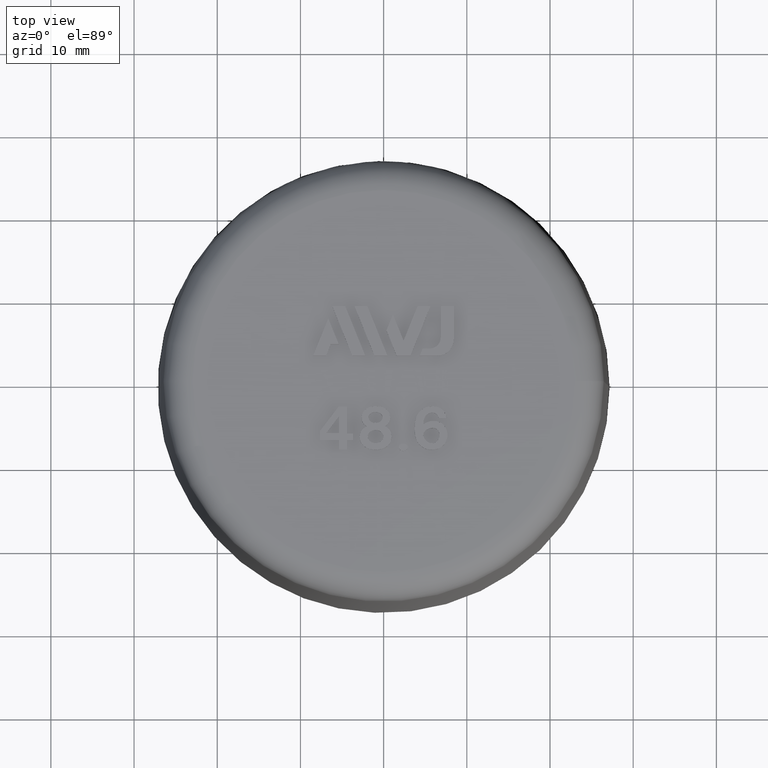
[diagram: clean part render]
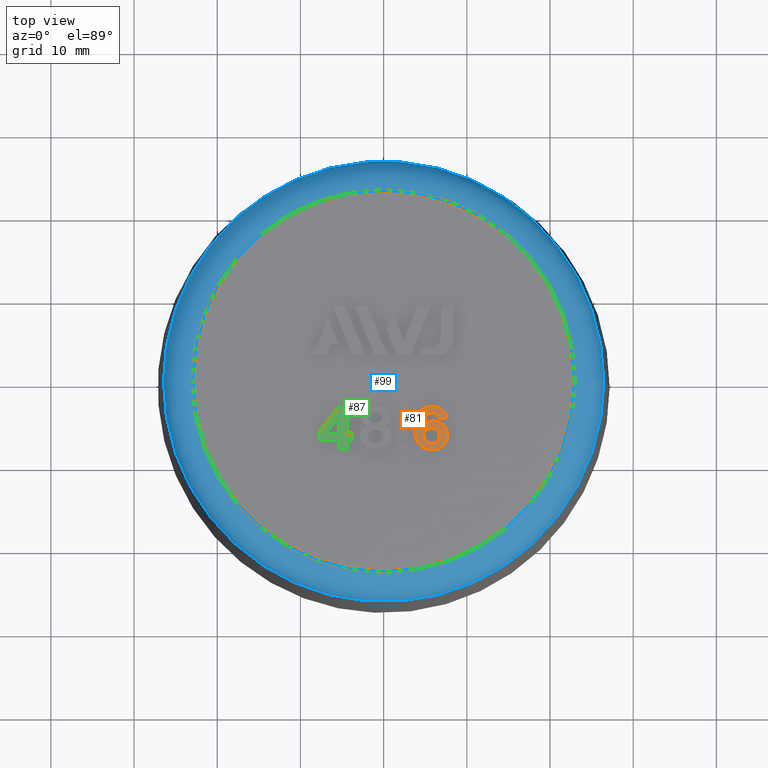
[diagram: same view with three faces highlighted in distinct colors, each labeled with its STEP entity id]
A machine part, top view with three faces highlighted in distinct colors.
Their STEP definitions:

[orange] entity #81 — the highlighted planar face has unit normal (0, -0, -1).
#81 = ADVANCED_FACE( '', ( #172, #173 ), #174, .F. );
#172 = FACE_BOUND( '', #341, .T. );
#173 = FACE_OUTER_BOUND( '', #342, .T. );
#174 = PLANE( '', #343 );
#341 = EDGE_LOOP( '', ( #581, #582 ) );
#342 = EDGE_LOOP( '', ( #583, #584, #585, #586 ) );
#343 = AXIS2_PLACEMENT_3D( '', #587, #588, #589 );
#581 = ORIENTED_EDGE( '', *, *, #1221, .T. );
#582 = ORIENTED_EDGE( '', *, *, #1222, .T. );
#583 = ORIENTED_EDGE( '', *, *, #1223, .T. );
#584 = ORIENTED_EDGE( '', *, *, #1224, .T. );
#585 = ORIENTED_EDGE( '', *, *, #1225, .T. );
#586 = ORIENTED_EDGE( '', *, *, #1226, .T. );
#587 = CARTESIAN_POINT( '', ( 7.35093929762131, -3.85225415278896, 43.0000000000000 ) );
#588 = DIRECTION( '', ( 8.00699180035598E-017, -7.03439285930439E-018, -1.00000000000000 ) );
#589 = DIRECTION( '', ( 1.00000000000000, 2.13821176807376E-050, 8.00699180035598E-017 ) );
#1221 = EDGE_CURVE( '', #1442, #1443, #1444, .T. );
#1222 = EDGE_CURVE( '', #1443, #1442, #1445, .T. );
#1223 = EDGE_CURVE( '', #1446, #1447, #1448, .T. );
#1224 = EDGE_CURVE( '', #1447, #1449, #1450, .T. );
#1225 = EDGE_CURVE( '', #1449, #1451, #1452, .T. );
#1226 = EDGE_CURVE( '', #1451, #1446, #1453, .T. );
#1442 = VERTEX_POINT( '', #1873 );
#1443 = VERTEX_POINT( '', #1874 );
#1444 = B_SPLINE_CURVE_WITH_KNOTS( '', 3, ( #1875, #1876, #1877, #1878, #1879, #1880 ), .UNSPECIFIED., .F., .F., ( 4, 2, 4 ), ( 0.000000000000000, 0.000430586384356433, 0.000861172768712866 ), .UNSPECIFIED. );
#1445 = B_SPLINE_CURVE_WITH_KNOTS( '', 3, ( #1881, #1882, #1883, #1884, #1885, #1886, #1887, #1888, #1889, #1890, #1891, #1892, #1893, #1894, #1895, #1896, #1897, #1898, #1899, #1900, #1901, #1902, #1903, #1904, #1905, #1906, #1907, #1908, #1909, #1910, #1911, #1912, #1913, #1914 ), .UNSPECIFIED., .F., .F., ( 4, 2, 2, 2, 2, 2, 2, 2, 2, 2, 2, 2, 2, 2, 2, 2, 4 ), ( 0.000000000000000, 0.000316104751166434, 0.000632209502332867, 0.000948314253499301, 0.00126441900466573, 0.00158052375583217, 0.00189662850699860, 0.00221273325816504, 0.00252883800933147, 0.00284494276049790, 0.00316104751166434, 0.00347715226283077, 0.00379325701399720, 0.00410936176516364, 0.00442546651633007, 0.00474157126749651, 0.00505767601866294 ), .UNSPECIFIED. );
#1446 = VERTEX_POINT( '', #1915 );
#1447 = VERTEX_POINT( '', #1916 );
#1448 = B_SPLINE_CURVE_WITH_KNOTS( '', 2, ( #1917, #1918, #1919 ), .UNSPECIFIED., .F., .F., ( 3, 3 ), ( -2.00000000000000, -1.00000000000000 ), .UNSPECIFIED. );
#1449 = VERTEX_POINT( '', #1920 );
#1450 = B_SPLINE_CURVE_WITH_KNOTS( '', 2, ( #1921, #1922, #1923 ), .UNSPECIFIED., .F., .F., ( 3, 3 ), ( -1.00000000000000, 0.000000000000000 ), .UNSPECIFIED. );
#1451 = VERTEX_POINT( '', #1924 );
#1452 = B_SPLINE_CURVE_WITH_KNOTS( '', 2, ( #1925, #1926, #1927, #1928, #1929, #1930, #1931, #1932, #1933, #1934, #1935, #1936, #1937, #1938, #1939, #1940, #1941, #1942, #1943, #1944, #1945, #1946, #1947 ), .UNSPECIFIED., .F., .F., ( 3, 2, 2, 2, 2, 2, 2, 2, 2, 2, 2, 3 ), ( -16.0000000000000, -15.0000000000000, -14.0000000000000, -13.0000000000000, -12.0000000000000, -11.0000000000000, -10.0000000000000, -9.00000000000000, -8.00000000000000, -7.00000000000000, -6.00000000000000, -5.00000000000000 ), .UNSPECIFIED. );
#1453 = B_SPLINE_CURVE_WITH_KNOTS( '', 2, ( #1948, #1949, #1950, #1951, #1952, #1953, #1954 ), .UNSPECIFIED., .F., .F., ( 3, 2, 2, 3 ), ( -5.00000000000000, -4.00000000000000, -3.00000000000000, -2.00000000000000 ), .UNSPECIFIED. );
#1873 = CARTESIAN_POINT( '', ( 5.02994117647058, -7.13051261828021, 43.0000000000000 ) );
#1874 = CARTESIAN_POINT( '', ( 4.75500000000000, -6.33474791239786, 43.0000000000000 ) );
#1875 = CARTESIAN_POINT( '', ( 5.02994117647058, -7.13051261828021, 43.0000000000000 ) );
#1876 = CARTESIAN_POINT( '', ( 4.93599773707825, -7.02091193898915, 43.0000000000000 ) );
#1877 = CARTESIAN_POINT( '', ( 4.86426944902446, -6.89342557156952, 43.0000000000000 ) );
#1878 = CARTESIAN_POINT( '', ( 4.77448448187338, -6.62323070791376, 43.0000000000000 ) );
#1879 = CARTESIAN_POINT( '', ( 4.75499999999999, -6.47882198813682, 43.0000000000000 ) );
#1880 = CARTESIAN_POINT( '', ( 4.75500000000000, -6.33474791239786, 43.0000000000000 ) );
#1881 = CARTESIAN_POINT( '', ( 4.75500000000000, -6.33474791239786, 43.0000000000000 ) );
#1882 = CARTESIAN_POINT( '', ( 4.80739433508018, -6.24196627736004, 43.0000000000000 ) );
#1883 = CARTESIAN_POINT( '', ( 4.86996278035086, -6.15713544139942, 43.0000000000000 ) );
#1884 = CARTESIAN_POINT( '', ( 5.01626799083307, -6.00401625383315, 43.0000000000000 ) );
#1885 = CARTESIAN_POINT( '', ( 5.09931617034371, -5.93687578274849, 43.0000000000000 ) );
#1886 = CARTESIAN_POINT( '', ( 5.27688370881502, -5.82367445774872, 43.0000000000000 ) );
#1887 = CARTESIAN_POINT( '', ( 5.37306588512870, -5.77650115860632, 43.0000000000000 ) );
#1888 = CARTESIAN_POINT( '', ( 5.56983368788012, -5.70058335432898, 43.0000000000000 ) );
#1889 = CARTESIAN_POINT( '', ( 5.67083394461639, -5.67104631802367, 43.0000000000000 ) );
#1890 = CARTESIAN_POINT( '', ( 5.88233105482435, -5.64254112943587, 43.0000000000000 ) );
#1891 = CARTESIAN_POINT( '', ( 5.98986802178589, -5.64464844696283, 43.0000000000000 ) );
#1892 = CARTESIAN_POINT( '', ( 6.19697072934725, -5.69435521697574, 43.0000000000000 ) );
#1893 = CARTESIAN_POINT( '', ( 6.29372088026090, -5.74192341765029, 43.0000000000000 ) );
#1894 = CARTESIAN_POINT( '', ( 6.46253434551157, -5.87081804300573, 43.0000000000000 ) );
#1895 = CARTESIAN_POINT( '', ( 6.53656723627160, -5.95040521022408, 43.0000000000000 ) );
#1896 = CARTESIAN_POINT( '', ( 6.64777968497634, -6.12912585909805, 43.0000000000000 ) );
#1897 = CARTESIAN_POINT( '', ( 6.68483280187118, -6.23179280281680, 43.0000000000000 ) );
#1898 = CARTESIAN_POINT( '', ( 6.71523239239377, -6.44116215485728, 43.0000000000000 ) );
#1899 = CARTESIAN_POINT( '', ( 6.70991161016147, -6.54922507651376, 43.0000000000000 ) );
#1900 = CARTESIAN_POINT( '', ( 6.67293734469748, -6.75701412583847, 43.0000000000000 ) );
#1901 = CARTESIAN_POINT( '', ( 6.64212563898386, -6.86001734009647, 43.0000000000000 ) );
#1902 = CARTESIAN_POINT( '', ( 6.56204209421943, -7.05521927317359, 43.0000000000000 ) );
#1903 = CARTESIAN_POINT( '', ( 6.50789120973032, -7.14849079256507, 43.0000000000000 ) );
#1904 = CARTESIAN_POINT( '', ( 6.36595309852379, -7.30704633594175, 43.0000000000000 ) );
#1905 = CARTESIAN_POINT( '', ( 6.27769747268709, -7.37132756955274, 43.0000000000000 ) );
#1906 = CARTESIAN_POINT( '', ( 6.08426491935440, -7.45889219183575, 43.0000000000000 ) );
#1907 = CARTESIAN_POINT( '', ( 5.97832075849365, -7.48347053944350, 43.0000000000000 ) );
#1908 = CARTESIAN_POINT( '', ( 5.76792394763042, -7.50420366789107, 43.0000000000000 ) );
#1909 = CARTESIAN_POINT( '', ( 5.65915657759908, -7.50176502551313, 43.0000000000000 ) );
#1910 = CARTESIAN_POINT( '', ( 5.45286255606143, -7.45227477639950, 43.0000000000000 ) );
#1911 = CARTESIAN_POINT( '', ( 5.35399574513668, -7.40634426652754, 43.0000000000000 ) );
#1912 = CARTESIAN_POINT( '', ( 5.17836961481993, -7.28629843006601, 43.0000000000000 ) );
#1913 = CARTESIAN_POINT( '', ( 5.09976707988972, -7.21197617226920, 43.0000000000000 ) );
#1914 = CARTESIAN_POINT( '', ( 5.02994117647058, -7.13051261828021, 43.0000000000000 ) );
#1915 = CARTESIAN_POINT( '', ( 6.61500000000000, -4.45974791239786, 43.0000000000000 ) );
#1916 = CARTESIAN_POINT( '', ( 7.57500000000000, -4.45974791239786, 43.0000000000000 ) );
#1917 = CARTESIAN_POINT( '', ( 6.61500000000000, -4.45974791239786, 43.0000000000000 ) );
#1918 = CARTESIAN_POINT( '', ( 7.09500000000000, -4.45974791239786, 43.0000000000000 ) );
#1919 = CARTESIAN_POINT( '', ( 7.57500000000000, -4.45974791239786, 43.0000000000000 ) );
#1920 = CARTESIAN_POINT( '', ( 6.91875719048524, -3.37977287396224, 43.0000000000000 ) );
#1921 = CARTESIAN_POINT( '', ( 7.57500000000000, -4.45974791239786, 43.0000000000000 ) );
#1922 = CARTESIAN_POINT( '', ( 7.45500000000000, -3.78474791239786, 43.0000000000000 ) );
#1923 = CARTESIAN_POINT( '', ( 6.91875719048524, -3.37977287396224, 43.0000000000000 ) );
#1924 = CARTESIAN_POINT( '', ( 4.75500000000000, -5.25974791239786, 43.0000000000000 ) );
#1925 = CARTESIAN_POINT( '', ( 6.91875719048524, -3.37977287396224, 43.0000000000000 ) );
#1926 = CARTESIAN_POINT( '', ( 6.49500000000000, -3.05974791239786, 43.0000000000000 ) );
#1927 = CARTESIAN_POINT( '', ( 5.86500000000000, -3.05974791239786, 43.0000000000000 ) );
#1928 = CARTESIAN_POINT( '', ( 4.69500000000000, -3.05974791239786, 43.0000000000000 ) );
#1929 = CARTESIAN_POINT( '', ( 4.10768005758763, -3.99273011258417, 43.0000000000000 ) );
#1930 = CARTESIAN_POINT( '', ( 3.73500000000000, -4.58474791239786, 43.0000000000000 ) );
#1931 = CARTESIAN_POINT( '', ( 3.72000291992905, -5.65953865081547, 43.0000000000000 ) );
#1932 = CARTESIAN_POINT( '', ( 3.70500000000000, -6.73474791239786, 43.0000000000000 ) );
#1933 = CARTESIAN_POINT( '', ( 4.03546970408642, -7.30947783254817, 43.0000000000000 ) );
#1934 = CARTESIAN_POINT( '', ( 4.39500000000000, -7.93474791239786, 43.0000000000000 ) );
#1935 = CARTESIAN_POINT( '', ( 5.11800000000000, -8.17574791239786, 43.0000000000000 ) );
#1936 = CARTESIAN_POINT( '', ( 5.74500000000000, -8.38474791239786, 43.0000000000000 ) );
#1937 = CARTESIAN_POINT( '', ( 6.40405378083299, -8.20625418008892, 43.0000000000000 ) );
#1938 = CARTESIAN_POINT( '', ( 6.94500000000000, -8.05974791239786, 43.0000000000000 ) );
#1939 = CARTESIAN_POINT( '', ( 7.27448891182025, -7.65932735983853, 43.0000000000000 ) );
#1940 = CARTESIAN_POINT( '', ( 7.66500000000000, -7.18474791239786, 43.0000000000000 ) );
#1941 = CARTESIAN_POINT( '', ( 7.66500000000000, -6.60974791239786, 43.0000000000000 ) );
#1942 = CARTESIAN_POINT( '', ( 7.66500000000000, -6.13474791239786, 43.0000000000000 ) );
#1943 = CARTESIAN_POINT( '', ( 7.51649630325079, -5.78411418396223, 43.0000000000000 ) );
#1944 = CARTESIAN_POINT( '', ( 7.30500000000000, -5.28474791239786, 43.0000000000000 ) );
#1945 = CARTESIAN_POINT( '', ( 6.87600289192759, -5.05128009848091, 43.0000000000000 ) );
#1946 = CARTESIAN_POINT( '', ( 5.83500000000000, -4.48474791239786, 43.0000000000000 ) );
#1947 = CARTESIAN_POINT( '', ( 4.75500000000000, -5.25974791239786, 43.0000000000000 ) );
#1948 = CARTESIAN_POINT( '', ( 4.75500000000000, -5.25974791239786, 43.0000000000000 ) );
#1949 = CARTESIAN_POINT( '', ( 4.75500000000000, -4.60974791239786, 43.0000000000000 ) );
#1950 = CARTESIAN_POINT( '', ( 5.02560507482108, -4.26021635742063, 43.0000000000000 ) );
#1951 = CARTESIAN_POINT( '', ( 5.35500000000000, -3.83474791239786, 43.0000000000000 ) );
#1952 = CARTESIAN_POINT( '', ( 5.83500000000000, -3.83474791239786, 43.0000000000000 ) );
#1953 = CARTESIAN_POINT( '', ( 6.46500000000000, -3.83474791239786, 43.0000000000000 ) );
#1954 = CARTESIAN_POINT( '', ( 6.61500000000000, -4.45974791239786, 43.0000000000000 ) );

[blue] entity #99 — the highlighted toroidal blend (fillet) surface has major radius 22.9682 mm and minor (blend) radius 3.5 mm.
#99 = ADVANCED_FACE( '', ( #215, #216 ), #217, .T. );
#215 = FACE_OUTER_BOUND( '', #391, .T. );
#216 = FACE_OUTER_BOUND( '', #392, .T. );
#217 = TOROIDAL_SURFACE( '', #393, 22.9682014383200, 3.50000000000000 );
#391 = EDGE_LOOP( '', ( #780 ) );
#392 = EDGE_LOOP( '', ( #781 ) );
#393 = AXIS2_PLACEMENT_3D( '', #782, #783, #784 );
#780 = ORIENTED_EDGE( '', *, *, #1177, .F. );
#781 = ORIENTED_EDGE( '', *, *, #1264, .T. );
#782 = CARTESIAN_POINT( '', ( -2.38798238995364E-015, 0.000000000000000, 39.0000000000000 ) );
#783 = DIRECTION( '', ( -6.12303176911189E-017, 0.000000000000000, 1.00000000000000 ) );
#784 = DIRECTION( '', ( 1.00000000000000, 0.000000000000000, 6.12303176911189E-017 ) );
#1177 = EDGE_CURVE( '', #1357, #1357, #1358, .T. );
#1264 = EDGE_CURVE( '', #1517, #1517, #1518, .T. );
#1357 = VERTEX_POINT( '', #1695 );
#1358 = CIRCLE( '', #1696, 22.9682014383200 );
#1517 = VERTEX_POINT( '', #2168 );
#1518 = CIRCLE( '', #2169, 26.4676683713673 );
#1695 = CARTESIAN_POINT( '', ( 22.9682014383200, 0.000000000000000, 42.5000000000000 ) );
#1696 = AXIS2_PLACEMENT_3D( '', #2326, #2327, #2328 );
#2168 = CARTESIAN_POINT( '', ( 26.4676683713673, 0.000000000000000, 39.0610834225305 ) );
#2169 = AXIS2_PLACEMENT_3D( '', #2378, #2379, #2380 );
#2326 = CARTESIAN_POINT( '', ( -2.60228850187255E-015, 0.000000000000000, 42.5000000000000 ) );
#2327 = DIRECTION( '', ( -6.12303176911189E-017, 0.000000000000000, 1.00000000000000 ) );
#2328 = DIRECTION( '', ( 1.00000000000000, 0.000000000000000, 6.12303176911189E-017 ) );
#2378 = CARTESIAN_POINT( '', ( -2.39172254732084E-015, 0.000000000000000, 39.0610834225305 ) );
#2379 = DIRECTION( '', ( -6.12303176911189E-017, 0.000000000000000, 1.00000000000000 ) );
#2380 = DIRECTION( '', ( 1.00000000000000, 0.000000000000000, 6.12303176911189E-017 ) );

[green] entity #87 — the highlighted planar face has unit normal (0, -0, -1).
#87 = ADVANCED_FACE( '', ( #188, #189 ), #190, .F. );
#188 = FACE_BOUND( '', #358, .T. );
#189 = FACE_OUTER_BOUND( '', #359, .T. );
#190 = PLANE( '', #360 );
#358 = EDGE_LOOP( '', ( #634, #635, #636 ) );
#359 = EDGE_LOOP( '', ( #637, #638, #639, #640, #641, #642, #643, #644, #645, #646, #647 ) );
#360 = AXIS2_PLACEMENT_3D( '', #648, #649, #650 );
#634 = ORIENTED_EDGE( '', *, *, #1240, .T. );
#635 = ORIENTED_EDGE( '', *, *, #1241, .T. );
#636 = ORIENTED_EDGE( '', *, *, #1238, .T. );
#637 = ORIENTED_EDGE( '', *, *, #1242, .T. );
#638 = ORIENTED_EDGE( '', *, *, #1243, .T. );
#639 = ORIENTED_EDGE( '', *, *, #1244, .T. );
#640 = ORIENTED_EDGE( '', *, *, #1245, .T. );
#641 = ORIENTED_EDGE( '', *, *, #1246, .T. );
#642 = ORIENTED_EDGE( '', *, *, #1247, .T. );
#643 = ORIENTED_EDGE( '', *, *, #1248, .T. );
#644 = ORIENTED_EDGE( '', *, *, #1249, .T. );
#645 = ORIENTED_EDGE( '', *, *, #1250, .T. );
#646 = ORIENTED_EDGE( '', *, *, #1251, .T. );
#647 = ORIENTED_EDGE( '', *, *, #1252, .T. );
#648 = CARTESIAN_POINT( '', ( -6.54000000000000, -4.58474791239786, 43.0000000000000 ) );
#649 = DIRECTION( '', ( 8.00699180035598E-017, -7.03439285930439E-018, -1.00000000000000 ) );
#650 = DIRECTION( '', ( 1.00000000000000, 2.13821176807376E-050, 8.00699180035598E-017 ) );
#1238 = EDGE_CURVE( '', #1477, #1475, #1478, .T. );
#1240 = EDGE_CURVE( '', #1475, #1480, #1481, .T. );
#1241 = EDGE_CURVE( '', #1480, #1477, #1482, .F. );
#1242 = EDGE_CURVE( '', #1483, #1484, #1485, .T. );
#1243 = EDGE_CURVE( '', #1484, #1486, #1487, .T. );
#1244 = EDGE_CURVE( '', #1486, #1488, #1489, .T. );
#1245 = EDGE_CURVE( '', #1488, #1490, #1491, .T. );
#1246 = EDGE_CURVE( '', #1490, #1492, #1493, .T. );
#1247 = EDGE_CURVE( '', #1492, #1494, #1495, .T. );
#1248 = EDGE_CURVE( '', #1494, #1496, #1497, .T. );
#1249 = EDGE_CURVE( '', #1496, #1498, #1499, .T. );
#1250 = EDGE_CURVE( '', #1498, #1500, #1501, .T. );
#1251 = EDGE_CURVE( '', #1500, #1502, #1503, .T. );
#1252 = EDGE_CURVE( '', #1502, #1483, #1504, .T. );
#1475 = VERTEX_POINT( '', #2086 );
#1477 = VERTEX_POINT( '', #2089 );
#1478 = LINE( '', #2090, #2091 );
#1480 = VERTEX_POINT( '', #2094 );
#1481 = LINE( '', #2095, #2096 );
#1482 = LINE( '', #2097, #2098 );
#1483 = VERTEX_POINT( '', #2099 );
#1484 = VERTEX_POINT( '', #2100 );
#1485 = B_SPLINE_CURVE_WITH_KNOTS( '', 2, ( #2101, #2102, #2103 ), .UNSPECIFIED., .F., .F., ( 3, 3 ), ( -2.00000000000000, -1.00000000000000 ), .UNSPECIFIED. );
#1486 = VERTEX_POINT( '', #2104 );
#1487 = B_SPLINE_CURVE_WITH_KNOTS( '', 2, ( #2105, #2106, #2107 ), .UNSPECIFIED., .F., .F., ( 3, 3 ), ( -1.00000000000000, 0.000000000000000 ), .UNSPECIFIED. );
#1488 = VERTEX_POINT( '', #2108 );
#1489 = B_SPLINE_CURVE_WITH_KNOTS( '', 2, ( #2109, #2110, #2111 ), .UNSPECIFIED., .F., .F., ( 3, 3 ), ( -11.0000000000000, -10.0000000000000 ), .UNSPECIFIED. );
#1490 = VERTEX_POINT( '', #2112 );
#1491 = B_SPLINE_CURVE_WITH_KNOTS( '', 2, ( #2113, #2114, #2115 ), .UNSPECIFIED., .F., .F., ( 3, 3 ), ( -10.0000000000000, -9.00000000000000 ), .UNSPECIFIED. );
#1492 = VERTEX_POINT( '', #2116 );
#1493 = B_SPLINE_CURVE_WITH_KNOTS( '', 2, ( #2117, #2118, #2119 ), .UNSPECIFIED., .F., .F., ( 3, 3 ), ( -9.00000000000000, -8.00000000000000 ), .UNSPECIFIED. );
#1494 = VERTEX_POINT( '', #2120 );
#1495 = B_SPLINE_CURVE_WITH_KNOTS( '', 2, ( #2121, #2122, #2123 ), .UNSPECIFIED., .F., .F., ( 3, 3 ), ( -8.00000000000000, -7.00000000000000 ), .UNSPECIFIED. );
#1496 = VERTEX_POINT( '', #2124 );
#1497 = B_SPLINE_CURVE_WITH_KNOTS( '', 2, ( #2125, #2126, #2127 ), .UNSPECIFIED., .F., .F., ( 3, 3 ), ( -7.00000000000000, -6.00000000000000 ), .UNSPECIFIED. );
#1498 = VERTEX_POINT( '', #2128 );
#1499 = B_SPLINE_CURVE_WITH_KNOTS( '', 2, ( #2129, #2130, #2131 ), .UNSPECIFIED., .F., .F., ( 3, 3 ), ( -6.00000000000000, -5.00000000000000 ), .UNSPECIFIED. );
#1500 = VERTEX_POINT( '', #2132 );
#1501 = B_SPLINE_CURVE_WITH_KNOTS( '', 2, ( #2133, #2134, #2135 ), .UNSPECIFIED., .F., .F., ( 3, 3 ), ( -5.00000000000000, -4.00000000000000 ), .UNSPECIFIED. );
#1502 = VERTEX_POINT( '', #2136 );
#1503 = B_SPLINE_CURVE_WITH_KNOTS( '', 2, ( #2137, #2138, #2139 ), .UNSPECIFIED., .F., .F., ( 3, 3 ), ( -4.00000000000000, -3.00000000000000 ), .UNSPECIFIED. );
#1504 = B_SPLINE_CURVE_WITH_KNOTS( '', 2, ( #2140, #2141, #2142 ), .UNSPECIFIED., .F., .F., ( 3, 3 ), ( -3.00000000000000, -2.00000000000000 ), .UNSPECIFIED. );
#2086 = CARTESIAN_POINT( '', ( -5.35500000000000, -4.25974791239786, 43.0000000000000 ) );
#2089 = CARTESIAN_POINT( '', ( -6.91500000000000, -6.30974791239786, 43.0000000000000 ) );
#2090 = CARTESIAN_POINT( '', ( -6.91500000000000, -6.30974791239786, 43.0000000000000 ) );
#2091 = VECTOR( '', #2365, 1000.00000000000 );
#2094 = CARTESIAN_POINT( '', ( -5.35500000000000, -6.30974791239786, 43.0000000000000 ) );
#2095 = CARTESIAN_POINT( '', ( -5.35500000000000, -4.58474791239786, 43.0000000000000 ) );
#2096 = VECTOR( '', #2367, 1000.00000000000 );
#2097 = CARTESIAN_POINT( '', ( -6.54000000000000, -6.30974791239786, 43.0000000000000 ) );
#2098 = VECTOR( '', #2368, 1000.00000000000 );
#2099 = CARTESIAN_POINT( '', ( -5.41500000000000, -3.10974791239786, 43.0000000000000 ) );
#2100 = CARTESIAN_POINT( '', ( -7.66500000000000, -6.05974791239786, 43.0000000000000 ) );
#2101 = CARTESIAN_POINT( '', ( -5.41500000000000, -3.10974791239786, 43.0000000000000 ) );
#2102 = CARTESIAN_POINT( '', ( -6.54000000000000, -4.58474791239786, 43.0000000000000 ) );
#2103 = CARTESIAN_POINT( '', ( -7.66500000000000, -6.05974791239786, 43.0000000000000 ) );
#2104 = CARTESIAN_POINT( '', ( -7.66500000000000, -7.13474791239786, 43.0000000000000 ) );
#2105 = CARTESIAN_POINT( '', ( -7.66500000000000, -6.05974791239786, 43.0000000000000 ) );
#2106 = CARTESIAN_POINT( '', ( -7.66500000000000, -6.59724791239786, 43.0000000000000 ) );
#2107 = CARTESIAN_POINT( '', ( -7.66500000000000, -7.13474791239786, 43.0000000000000 ) );
#2108 = CARTESIAN_POINT( '', ( -5.35500000000000, -7.13474791239786, 43.0000000000000 ) );
#2109 = CARTESIAN_POINT( '', ( -7.66500000000000, -7.13474791239786, 43.0000000000000 ) );
#2110 = CARTESIAN_POINT( '', ( -6.51000000000000, -7.13474791239786, 43.0000000000000 ) );
#2111 = CARTESIAN_POINT( '', ( -5.35500000000000, -7.13474791239786, 43.0000000000000 ) );
#2112 = CARTESIAN_POINT( '', ( -5.35500000000000, -8.25974791239786, 43.0000000000000 ) );
#2113 = CARTESIAN_POINT( '', ( -5.35500000000000, -7.13474791239786, 43.0000000000000 ) );
#2114 = CARTESIAN_POINT( '', ( -5.35500000000000, -7.69724791239786, 43.0000000000000 ) );
#2115 = CARTESIAN_POINT( '', ( -5.35500000000000, -8.25974791239786, 43.0000000000000 ) );
#2116 = CARTESIAN_POINT( '', ( -4.39500000000000, -8.25974791239786, 43.0000000000000 ) );
#2117 = CARTESIAN_POINT( '', ( -5.35500000000000, -8.25974791239786, 43.0000000000000 ) );
#2118 = CARTESIAN_POINT( '', ( -4.87500000000000, -8.25974791239786, 43.0000000000000 ) );
#2119 = CARTESIAN_POINT( '', ( -4.39500000000000, -8.25974791239786, 43.0000000000000 ) );
#2120 = CARTESIAN_POINT( '', ( -4.39500000000000, -7.13474791239786, 43.0000000000000 ) );
#2121 = CARTESIAN_POINT( '', ( -4.39500000000000, -8.25974791239786, 43.0000000000000 ) );
#2122 = CARTESIAN_POINT( '', ( -4.39500000000000, -7.69724791239786, 43.0000000000000 ) );
#2123 = CARTESIAN_POINT( '', ( -4.39500000000000, -7.13474791239786, 43.0000000000000 ) );
#2124 = CARTESIAN_POINT( '', ( -3.70500000000000, -7.13474791239786, 43.0000000000000 ) );
#2125 = CARTESIAN_POINT( '', ( -4.39500000000000, -7.13474791239786, 43.0000000000000 ) );
#2126 = CARTESIAN_POINT( '', ( -4.05000000000000, -7.13474791239786, 43.0000000000000 ) );
#2127 = CARTESIAN_POINT( '', ( -3.70500000000000, -7.13474791239786, 43.0000000000000 ) );
#2128 = CARTESIAN_POINT( '', ( -3.70500000000000, -6.33474791239786, 43.0000000000000 ) );
#2129 = CARTESIAN_POINT( '', ( -3.70500000000000, -7.13474791239786, 43.0000000000000 ) );
#2130 = CARTESIAN_POINT( '', ( -3.70500000000000, -6.73474791239786, 43.0000000000000 ) );
#2131 = CARTESIAN_POINT( '', ( -3.70500000000000, -6.33474791239786, 43.0000000000000 ) );
#2132 = CARTESIAN_POINT( '', ( -4.39500000000000, -6.33474791239786, 43.0000000000000 ) );
#2133 = CARTESIAN_POINT( '', ( -3.70500000000000, -6.33474791239786, 43.0000000000000 ) );
#2134 = CARTESIAN_POINT( '', ( -4.05000000000000, -6.33474791239786, 43.0000000000000 ) );
#2135 = CARTESIAN_POINT( '', ( -4.39500000000000, -6.33474791239786, 43.0000000000000 ) );
#2136 = CARTESIAN_POINT( '', ( -4.39500000000000, -3.10974791239786, 43.0000000000000 ) );
#2137 = CARTESIAN_POINT( '', ( -4.39500000000000, -6.33474791239786, 43.0000000000000 ) );
#2138 = CARTESIAN_POINT( '', ( -4.39500000000000, -4.72224791239786, 43.0000000000000 ) );
#2139 = CARTESIAN_POINT( '', ( -4.39500000000000, -3.10974791239786, 43.0000000000000 ) );
#2140 = CARTESIAN_POINT( '', ( -4.39500000000000, -3.10974791239786, 43.0000000000000 ) );
#2141 = CARTESIAN_POINT( '', ( -4.90500000000000, -3.10974791239786, 43.0000000000000 ) );
#2142 = CARTESIAN_POINT( '', ( -5.41500000000000, -3.10974791239786, 43.0000000000000 ) );
#2365 = DIRECTION( '', ( 0.605575278309936, 0.795788025984209, 3.70795666768051E-017 ) );
#2367 = DIRECTION( '', ( -5.63243259449329E-034, -1.00000000000000, 7.03439285930439E-018 ) );
#2368 = DIRECTION( '', ( 1.00000000000000, 2.13821176807376E-050, 8.00699180035598E-017 ) );